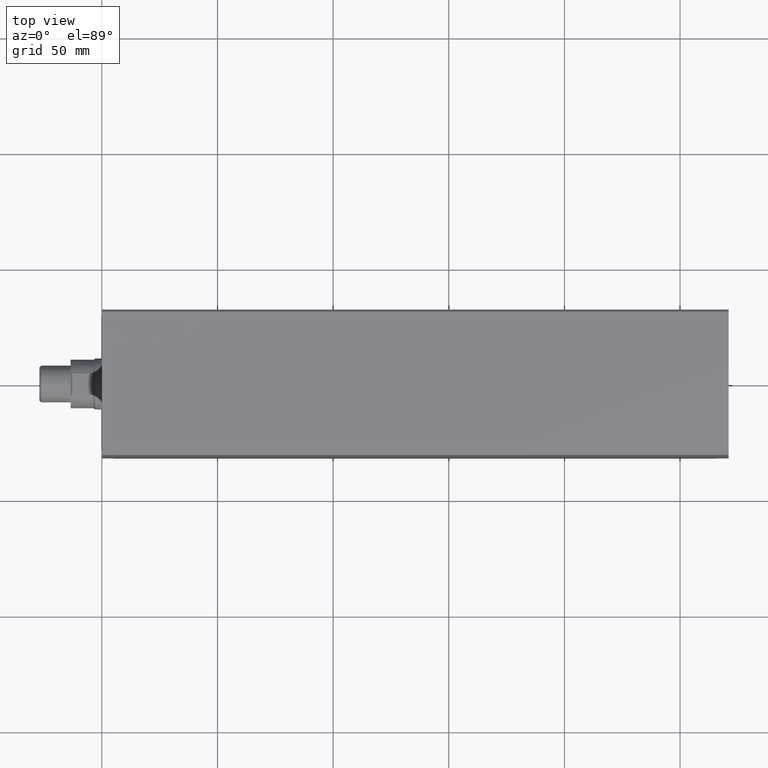
[diagram: clean part render]
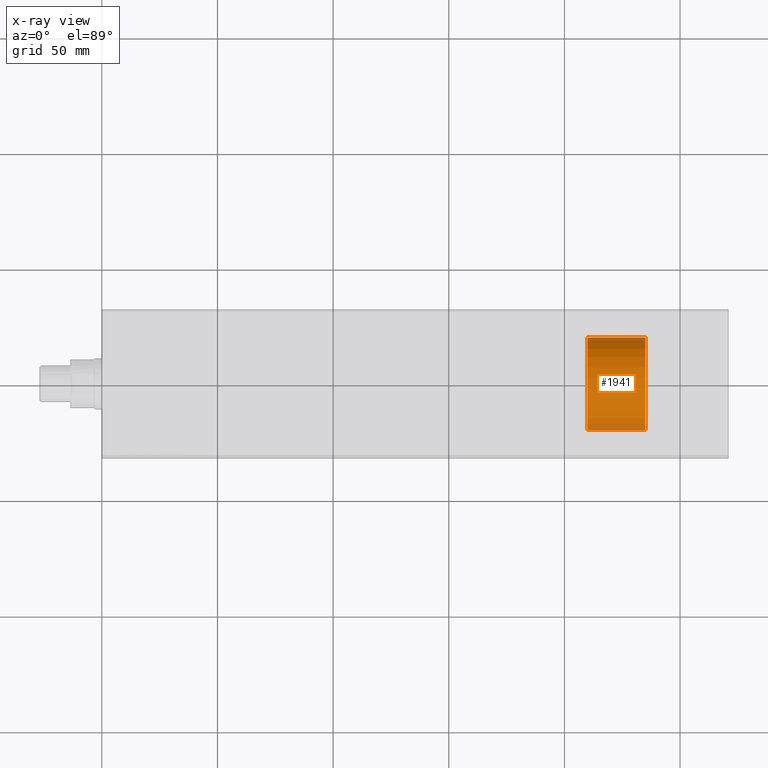
[diagram: x-ray — body ghosted, one internal face saturated and labeled with its STEP entity id]
A machine part, top view, then the same camera in x-ray: the body is ghosted and one INTERNAL B-rep face — a face not visible from any outside direction — is saturated and labeled: STEP entity #1941.
In plain terms, the highlighted cylindrical surface (partial cylindrical patch) has radius 20 mm, axis along (-1, -0, 0).
Its self-contained STEP definition (entity closure, byte-faithful):
#105 = CARTESIAN_POINT ( 'NONE',  ( 0.000000000000000000, -20.00000000000000000, 24.99999999999998934 ) ) ;
#614 = DIRECTION ( 'NONE',  ( 0.000000000000000000, -1.000000000000000000, -1.734723475976807341E-16 ) ) ;
#969 = DIRECTION ( 'NONE',  ( 0.000000000000000000, -1.000000000000000000, 0.000000000000000000 ) ) ;
#1422 = CARTESIAN_POINT ( 'NONE',  ( 0.000000000000000000, -4.618361760056742812E-14, 248.5000000000000000 ) ) ;
#1537 = ORIENTED_EDGE ( 'NONE', *, *, #33359, .T. ) ;
#1941 = ADVANCED_FACE ( 'NONE', ( #32242 ), #31792, .T. ) ;
#5706 = DIRECTION ( 'NONE',  ( -0.000000000000000000, -1.858495678091244952E-16, 1.000000000000000000 ) ) ;
#6754 = CIRCLE ( 'NONE', #12492, 20.00000000000000000 ) ;
#10650 = AXIS2_PLACEMENT_3D ( 'NONE', #1422, #25507, #969 ) ;
#10751 = CARTESIAN_POINT ( 'NONE',  ( 0.000000000000000000, -4.646239195228101189E-15, 24.99999999999999289 ) ) ;
#11406 = DIRECTION ( 'NONE',  ( -0.000000000000000000, -1.858495678091244952E-16, 1.000000000000000000 ) ) ;
#12229 = CARTESIAN_POINT ( 'NONE',  ( 2.449293598294706119E-15, 19.99999999999995026, 248.5000000000000000 ) ) ;
#12492 = AXIS2_PLACEMENT_3D ( 'NONE', #34530, #27557, #41272 ) ;
#13080 = DIRECTION ( 'NONE',  ( -0.000000000000000000, -1.858495678091244952E-16, 1.000000000000000000 ) ) ;
#13308 = EDGE_CURVE ( 'NONE', #37832, #36789, #31667, .T. ) ;
#16208 = EDGE_CURVE ( 'NONE', #21488, #37832, #17571, .T. ) ;
#17571 = LINE ( 'NONE', #43897, #37308 ) ;
#19686 = EDGE_LOOP ( 'NONE', ( #1537, #23874, #22804, #22839 ) ) ;
#19733 = VERTEX_POINT ( 'NONE', #30588 ) ;
#21488 = VERTEX_POINT ( 'NONE', #42917 ) ;
#21951 = CARTESIAN_POINT ( 'NONE',  ( 2.449293598294706119E-15, 19.99999999999999289, 24.99999999999999645 ) ) ;
#22804 = ORIENTED_EDGE ( 'NONE', *, *, #13308, .F. ) ;
#22839 = ORIENTED_EDGE ( 'NONE', *, *, #16208, .F. ) ;
#22843 = EDGE_CURVE ( 'NONE', #19733, #36789, #43047, .T. ) ;
#23069 = AXIS2_PLACEMENT_3D ( 'NONE', #10751, #11406, #614 ) ;
#23853 = VECTOR ( 'NONE', #5706, 1000.000000000000000 ) ;
#23874 = ORIENTED_EDGE ( 'NONE', *, *, #22843, .T. ) ;
#25507 = DIRECTION ( 'NONE',  ( -0.000000000000000000, -1.858495678091244952E-16, 1.000000000000000000 ) ) ;
#27557 = DIRECTION ( 'NONE',  ( -0.000000000000000000, -1.858495678091244952E-16, 1.000000000000000000 ) ) ;
#30588 = CARTESIAN_POINT ( 'NONE',  ( 2.449293598294706513E-15, 20.00000000000000000, 3.716991356182490102E-15 ) ) ;
#31667 = CIRCLE ( 'NONE', #23069, 19.99999999999999645 ) ;
#31792 = CYLINDRICAL_SURFACE ( 'NONE', #10650, 19.99999999999999645 ) ;
#32242 = FACE_OUTER_BOUND ( 'NONE', #19686, .T. ) ;
#33359 = EDGE_CURVE ( 'NONE', #21488, #19733, #6754, .T. ) ;
#34530 = CARTESIAN_POINT ( 'NONE',  ( 0.000000000000000000, 6.162975822039154730E-30, 0.000000000000000000 ) ) ;
#36789 = VERTEX_POINT ( 'NONE', #21951 ) ;
#37308 = VECTOR ( 'NONE', #13080, 1000.000000000000000 ) ;
#37832 = VERTEX_POINT ( 'NONE', #105 ) ;
#41272 = DIRECTION ( 'NONE',  ( 0.000000000000000000, -1.000000000000000000, -1.858495678091244952E-16 ) ) ;
#42917 = CARTESIAN_POINT ( 'NONE',  ( 0.000000000000000000, -20.00000000000000000, -3.716991356182490102E-15 ) ) ;
#43047 = LINE ( 'NONE', #12229, #23853 ) ;
#43897 = CARTESIAN_POINT ( 'NONE',  ( 0.000000000000000000, -20.00000000000004263, 248.5000000000000000 ) ) ;